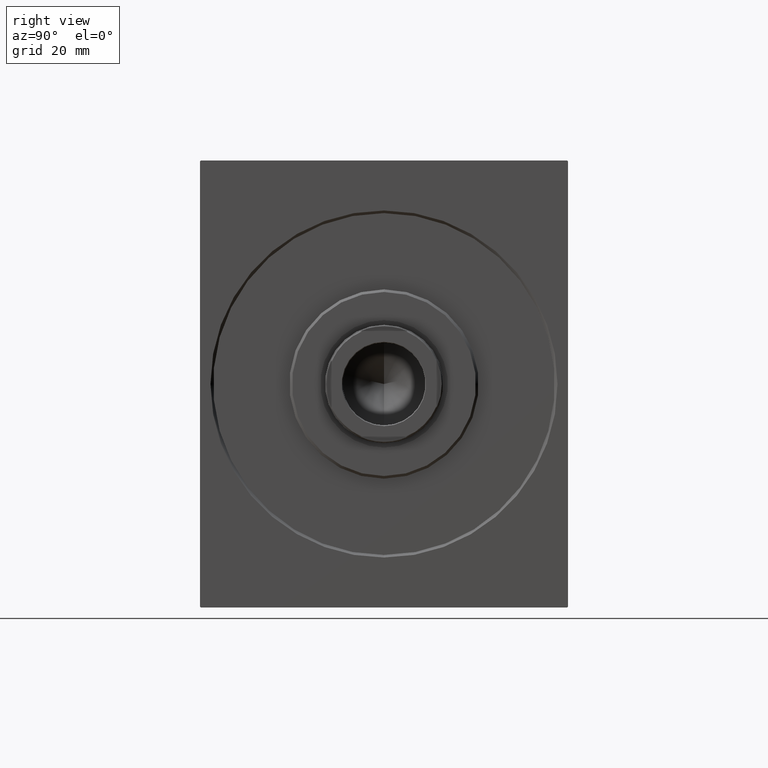
[diagram: clean part render]
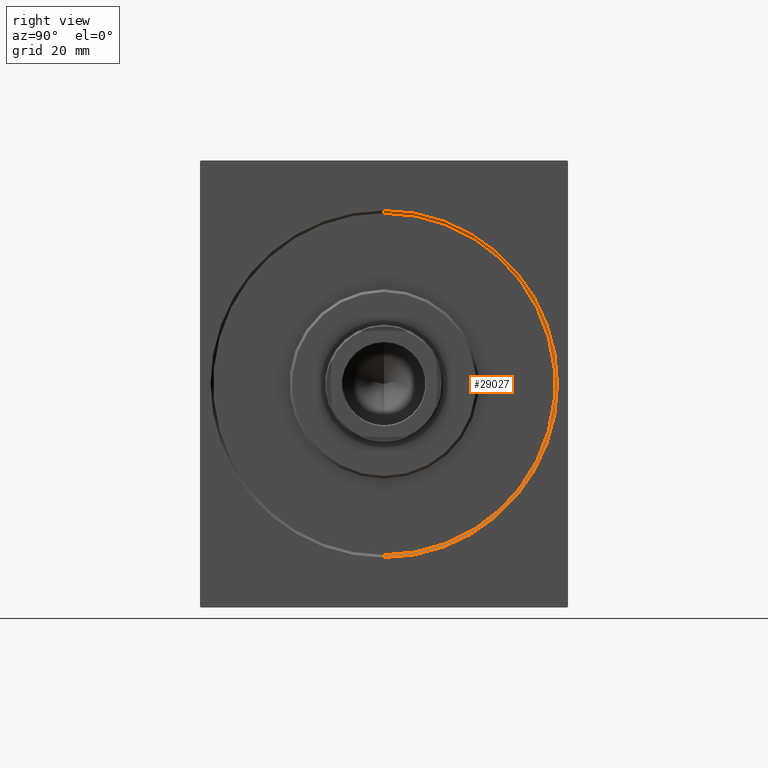
[diagram: same view with one face highlighted and labeled with its STEP entity id]
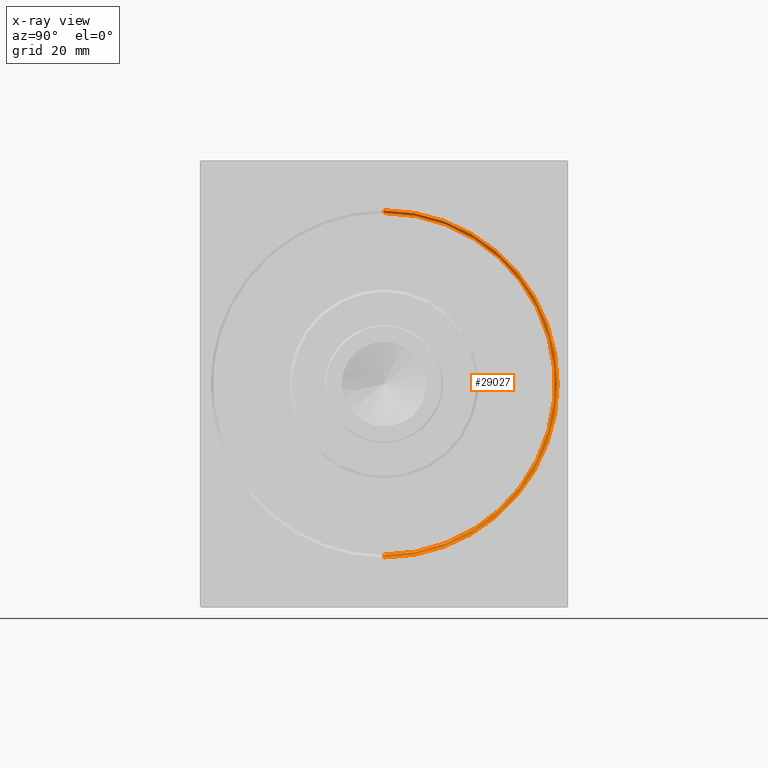
[diagram: x-ray of the same camera — body ghosted, the highlighted face saturated]
A machine part, right view. The second image highlights one B-rep face of the part: STEP entity #29027.
The next image is the same camera in x-ray: the body ghosted, the highlighted face saturated — about 0% of this face is hidden behind the body in this view.
In plain terms, the highlighted conical surface has half-angle 45 deg.
Its self-contained STEP definition (entity closure, byte-faithful):
#855 = CIRCLE ( 'NONE', #21605, 65.99999999999994316 ) ;
#3332 = ORIENTED_EDGE ( 'NONE', *, *, #15086, .T. ) ;
#3474 = DIRECTION ( 'NONE',  ( 1.000000000000000000, 0.000000000000000000, -0.000000000000000000 ) ) ;
#3506 = EDGE_CURVE ( 'NONE', #19892, #19573, #21334, .T. ) ;
#3898 = DIRECTION ( 'NONE',  ( 0.000000000000000000, 0.000000000000000000, -1.000000000000000000 ) ) ;
#4764 = VECTOR ( 'NONE', #28269, 1000.000000000000114 ) ;
#4881 = CARTESIAN_POINT ( 'NONE',  ( 0.9999999999999453770, 0.000000000000000000, 65.00000000000000000 ) ) ;
#5596 = DIRECTION ( 'NONE',  ( -1.000000000000000000, 0.000000000000000000, 0.000000000000000000 ) ) ;
#8641 = DIRECTION ( 'NONE',  ( 0.000000000000000000, 0.000000000000000000, 1.000000000000000000 ) ) ;
#11591 = EDGE_LOOP ( 'NONE', ( #26290, #3332, #14723, #27395 ) ) ;
#12644 = CARTESIAN_POINT ( 'NONE',  ( 0.000000000000000000, 0.000000000000000000, 65.99999999999994316 ) ) ;
#13429 = CARTESIAN_POINT ( 'NONE',  ( 0.000000000000000000, 0.000000000000000000, 0.000000000000000000 ) ) ;
#14723 = ORIENTED_EDGE ( 'NONE', *, *, #30112, .F. ) ;
#15086 = EDGE_CURVE ( 'NONE', #28412, #27467, #24802, .T. ) ;
#18071 = DIRECTION ( 'NONE',  ( -0.7071067811865474617, 0.000000000000000000, 0.7071067811865474617 ) ) ;
#18255 = CARTESIAN_POINT ( 'NONE',  ( 0.9999999999999453770, 7.960204194457797252E-15, -65.00000000000000000 ) ) ;
#19573 = VERTEX_POINT ( 'NONE', #12644 ) ;
#19892 = VERTEX_POINT ( 'NONE', #25582 ) ;
#21334 = LINE ( 'NONE', #4881, #31320 ) ;
#21605 = AXIS2_PLACEMENT_3D ( 'NONE', #13429, #3474, #3898 ) ;
#23265 = CARTESIAN_POINT ( 'NONE',  ( 0.000000000000000000, 8.082668874372526089E-15, -65.99999999999994316 ) ) ;
#24510 = DIRECTION ( 'NONE',  ( -1.000000000000000000, 0.000000000000000000, 0.000000000000000000 ) ) ;
#24664 = FACE_OUTER_BOUND ( 'NONE', #11591, .T. ) ;
#24802 = LINE ( 'NONE', #38005, #4764 ) ;
#25519 = CARTESIAN_POINT ( 'NONE',  ( 0.9999999999999453770, 0.000000000000000000, 0.000000000000000000 ) ) ;
#25582 = CARTESIAN_POINT ( 'NONE',  ( 0.9999999999999453770, 0.000000000000000000, 65.00000000000000000 ) ) ;
#26290 = ORIENTED_EDGE ( 'NONE', *, *, #32332, .F. ) ;
#27395 = ORIENTED_EDGE ( 'NONE', *, *, #3506, .F. ) ;
#27467 = VERTEX_POINT ( 'NONE', #23265 ) ;
#28269 = DIRECTION ( 'NONE',  ( -0.7071067811865474617, 8.659560562354932858E-17, -0.7071067811865474617 ) ) ;
#28412 = VERTEX_POINT ( 'NONE', #18255 ) ;
#29027 = ADVANCED_FACE ( 'NONE', ( #24664 ), #39563, .F. ) ;
#29187 = AXIS2_PLACEMENT_3D ( 'NONE', #25519, #5596, #8641 ) ;
#30112 = EDGE_CURVE ( 'NONE', #19573, #27467, #855, .T. ) ;
#31320 = VECTOR ( 'NONE', #18071, 1000.000000000000114 ) ;
#31801 = CARTESIAN_POINT ( 'NONE',  ( 0.9999999999999453770, 0.000000000000000000, 0.000000000000000000 ) ) ;
#32332 = EDGE_CURVE ( 'NONE', #28412, #19892, #39654, .T. ) ;
#37552 = AXIS2_PLACEMENT_3D ( 'NONE', #31801, #24510, #37714 ) ;
#37714 = DIRECTION ( 'NONE',  ( 0.000000000000000000, 0.000000000000000000, -1.000000000000000000 ) ) ;
#38005 = CARTESIAN_POINT ( 'NONE',  ( 0.9999999999999453770, 7.960204194457797252E-15, -65.00000000000000000 ) ) ;
#39563 = CONICAL_SURFACE ( 'NONE', #29187, 65.00000000000000000, 0.7853981633974482790 ) ;
#39654 = CIRCLE ( 'NONE', #37552, 65.00000000000000000 ) ;